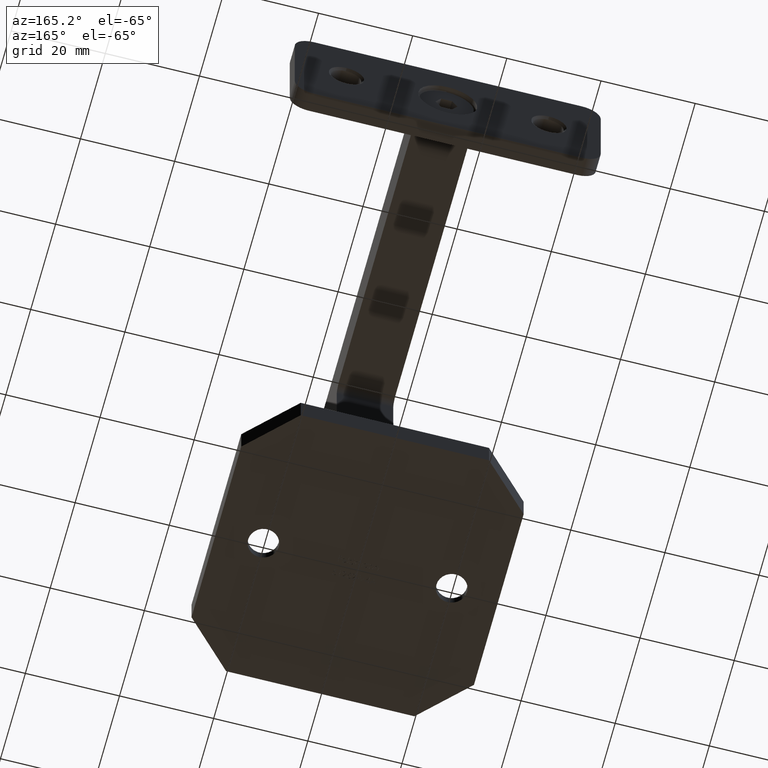
[diagram: clean part render]
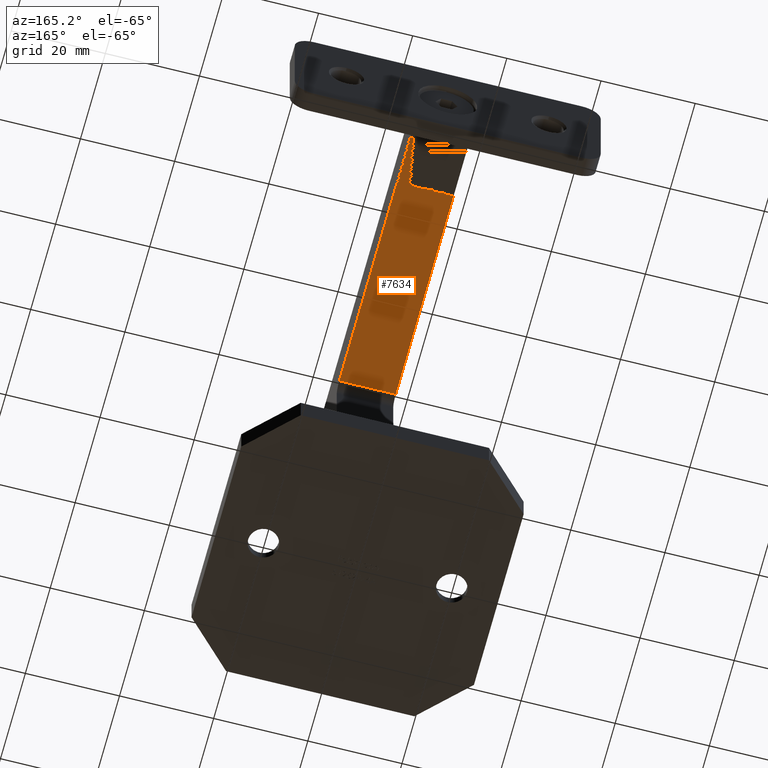
[diagram: same view with one face highlighted and labeled with its STEP entity id]
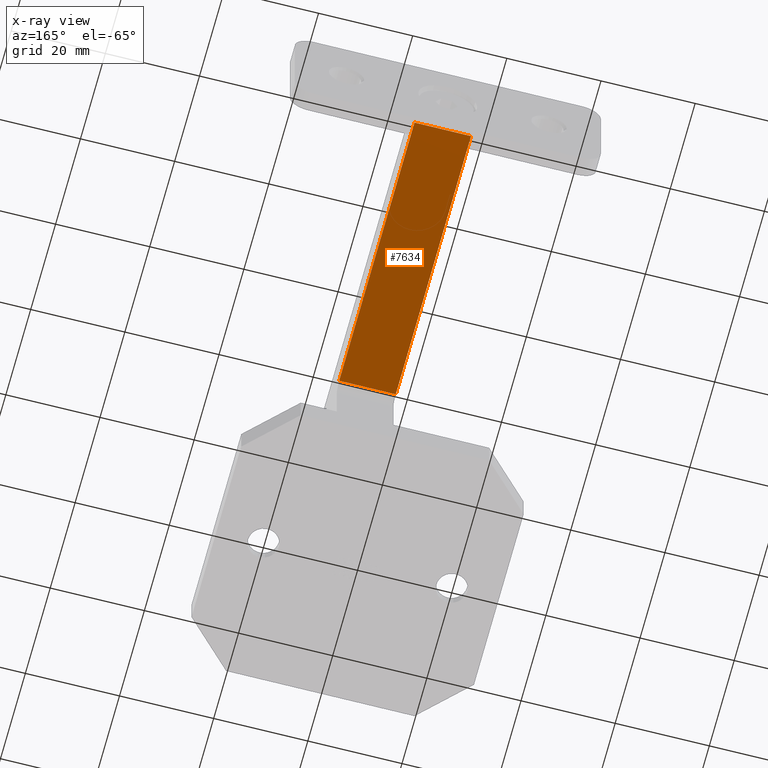
[diagram: x-ray of the same camera — body ghosted, the highlighted face saturated]
A machine part, auxiliary view. The second image highlights one B-rep face of the part: STEP entity #7634.
The next image is the same camera in x-ray: the body ghosted, the highlighted face saturated — about 0% of this face is hidden behind the body in this view.
In plain terms, the highlighted planar face has unit normal (0, 0, 1).
Its self-contained STEP definition (entity closure, byte-faithful):
#1800 = VERTEX_POINT ( 'NONE', #13289 ) ;
#2454 = VECTOR ( 'NONE', #5880, 1000.000000000000000 ) ;
#2888 = VERTEX_POINT ( 'NONE', #7146 ) ;
#3042 = CARTESIAN_POINT ( 'NONE',  ( 6.000000000000002665, 5.999999999999991118, 66.99999999999997158 ) ) ;
#3675 = CARTESIAN_POINT ( 'NONE',  ( 6.000000000000002665, 68.49999999999998579, 66.99999999999997158 ) ) ;
#4073 = LINE ( 'NONE', #11346, #22437 ) ;
#4123 = AXIS2_PLACEMENT_3D ( 'NONE', #3042, #4765, #11785 ) ;
#4765 = DIRECTION ( 'NONE',  ( 0.000000000000000000, 0.000000000000000000, 1.000000000000000000 ) ) ;
#5358 = VECTOR ( 'NONE', #9353, 1000.000000000000000 ) ;
#5880 = DIRECTION ( 'NONE',  ( 0.000000000000000000, 1.000000000000000000, 0.000000000000000000 ) ) ;
#6132 = VECTOR ( 'NONE', #21488, 1000.000000000000000 ) ;
#6507 = EDGE_LOOP ( 'NONE', ( #7112, #22680, #23087, #17484 ) ) ;
#7112 = ORIENTED_EDGE ( 'NONE', *, *, #9775, .F. ) ;
#7146 = CARTESIAN_POINT ( 'NONE',  ( 6.000000000000002665, 68.49999999999998579, 66.99999999999997158 ) ) ;
#7336 = VERTEX_POINT ( 'NONE', #11116 ) ;
#7634 = ADVANCED_FACE ( 'NONE', ( #13731 ), #13502, .F. ) ;
#7964 = VERTEX_POINT ( 'NONE', #12644 ) ;
#8104 = CARTESIAN_POINT ( 'NONE',  ( 6.000000000000002665, 6.000000000000000888, 66.99999999999997158 ) ) ;
#8636 = LINE ( 'NONE', #3675, #6132 ) ;
#8966 = LINE ( 'NONE', #8104, #5358 ) ;
#9353 = DIRECTION ( 'NONE',  ( 0.000000000000000000, 1.000000000000000000, 0.000000000000000000 ) ) ;
#9775 = EDGE_CURVE ( 'NONE', #7964, #2888, #8966, .T. ) ;
#11116 = CARTESIAN_POINT ( 'NONE',  ( -5.999999999999997335, 7.999999999999992895, 66.99999999999997158 ) ) ;
#11346 = CARTESIAN_POINT ( 'NONE',  ( 6.000000000000002665, 7.999999999999992895, 66.99999999999997158 ) ) ;
#11785 = DIRECTION ( 'NONE',  ( 1.000000000000000000, 0.000000000000000000, -0.000000000000000000 ) ) ;
#12644 = CARTESIAN_POINT ( 'NONE',  ( 6.000000000000002665, 7.999999999999992895, 66.99999999999997158 ) ) ;
#13057 = LINE ( 'NONE', #14528, #2454 ) ;
#13282 = EDGE_CURVE ( 'NONE', #7336, #1800, #13057, .T. ) ;
#13289 = CARTESIAN_POINT ( 'NONE',  ( -5.999999999999997335, 68.49999999999998579, 66.99999999999997158 ) ) ;
#13502 = PLANE ( 'NONE',  #4123 ) ;
#13731 = FACE_OUTER_BOUND ( 'NONE', #6507, .T. ) ;
#14528 = CARTESIAN_POINT ( 'NONE',  ( -5.999999999999997335, 5.999999999999991118, 66.99999999999997158 ) ) ;
#15854 = EDGE_CURVE ( 'NONE', #7964, #7336, #4073, .T. ) ;
#17484 = ORIENTED_EDGE ( 'NONE', *, *, #21207, .F. ) ;
#19089 = DIRECTION ( 'NONE',  ( -1.000000000000000000, -0.000000000000000000, 0.000000000000000000 ) ) ;
#21207 = EDGE_CURVE ( 'NONE', #2888, #1800, #8636, .T. ) ;
#21488 = DIRECTION ( 'NONE',  ( -1.000000000000000000, 0.000000000000000000, 0.000000000000000000 ) ) ;
#22437 = VECTOR ( 'NONE', #19089, 1000.000000000000000 ) ;
#22680 = ORIENTED_EDGE ( 'NONE', *, *, #15854, .T. ) ;
#23087 = ORIENTED_EDGE ( 'NONE', *, *, #13282, .T. ) ;